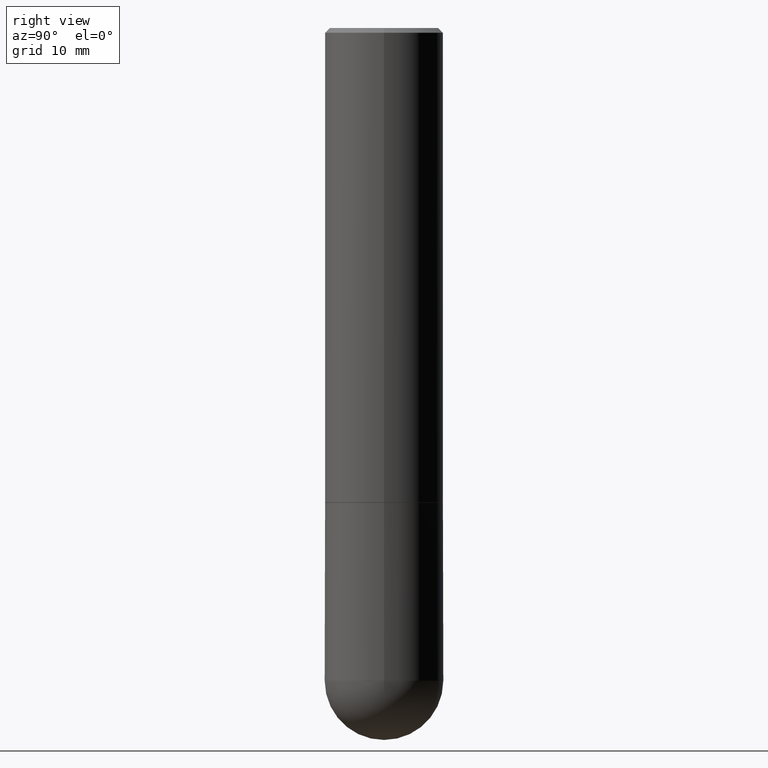
[diagram: clean part render]
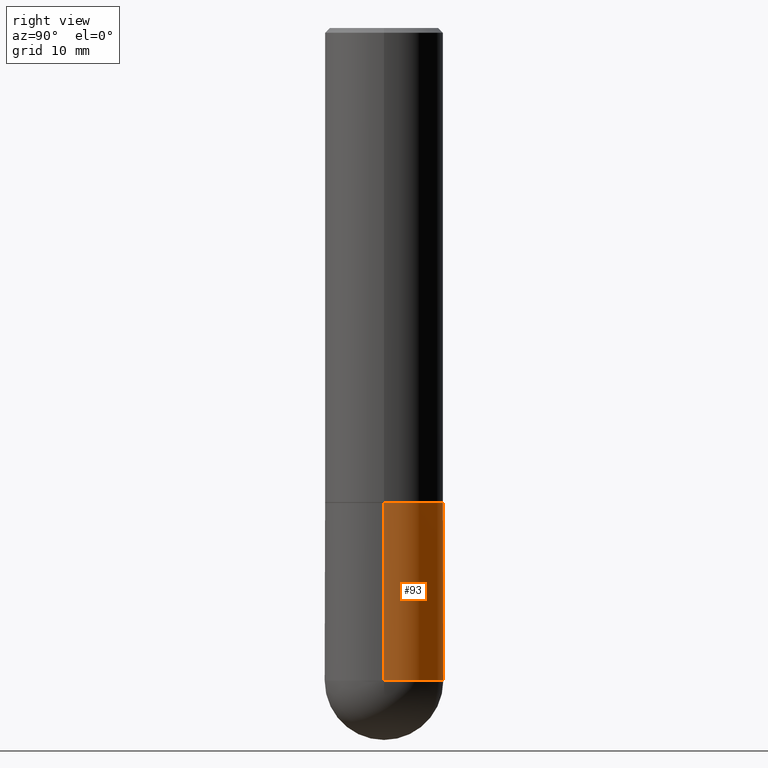
[diagram: same view with one face highlighted and labeled with its STEP entity id]
A machine part, right view. The second image highlights one B-rep face of the part: STEP entity #93.
In plain terms, the highlighted cylindrical surface (partial cylindrical patch) has radius 6.35 mm, axis along (-0, 0, 1).
Its self-contained STEP definition (entity closure, byte-faithful):
#3 = CIRCLE ( 'NONE', #155, 0.2500000000000000000 ) ;
#11 = DIRECTION ( 'NONE',  ( 1.000000000000000000, -6.982962677686262766E-15, 0.000000000000000000 ) ) ;
#13 = CARTESIAN_POINT ( 'NONE',  ( 0.000000000000000000, 0.000000000000000000, 0.000000000000000000 ) ) ;
#18 = LINE ( 'NONE', #401, #145 ) ;
#27 = ORIENTED_EDGE ( 'NONE', *, *, #221, .F. ) ;
#34 = VERTEX_POINT ( 'NONE', #387 ) ;
#39 = DIRECTION ( 'NONE',  ( -2.445468806185136597E-29, 3.491481338843145583E-15, 1.000000000000000000 ) ) ;
#58 = ORIENTED_EDGE ( 'NONE', *, *, #65, .T. ) ;
#59 = AXIS2_PLACEMENT_3D ( 'NONE', #308, #39, #11 ) ;
#65 = EDGE_CURVE ( 'NONE', #121, #130, #125, .T. ) ;
#75 = CARTESIAN_POINT ( 'NONE',  ( -0.2500000000000000000, -6.515911340352222020E-15, -2.750000000000000000 ) ) ;
#93 = ADVANCED_FACE ( 'NONE', ( #131 ), #386, .T. ) ;
#98 = DIRECTION ( 'NONE',  ( -2.445468806185136597E-29, 3.491481338843145583E-15, 1.000000000000000000 ) ) ;
#103 = DIRECTION ( 'NONE',  ( 1.000000000000000000, -6.982962677686266711E-15, 4.876176775795935793E-29 ) ) ;
#107 = CARTESIAN_POINT ( 'NONE',  ( -0.2500000000000000000, 1.776356839400250465E-15, -1.229733772563726445E-29 ) ) ;
#109 = CARTESIAN_POINT ( 'NONE',  ( 6.725039217009124520E-29, -9.601573681818649859E-15, -2.750000000000000000 ) ) ;
#111 = DIRECTION ( 'NONE',  ( -2.445468806185136877E-29, 3.491481338843145188E-15, 1.000000000000000000 ) ) ;
#115 = DIRECTION ( 'NONE',  ( 1.000000000000000000, -6.982962677686266711E-15, 0.000000000000000000 ) ) ;
#121 = VERTEX_POINT ( 'NONE', #388 ) ;
#125 = CIRCLE ( 'NONE', #59, 0.2500000000000000000 ) ;
#130 = VERTEX_POINT ( 'NONE', #276 ) ;
#131 = FACE_OUTER_BOUND ( 'NONE', #166, .T. ) ;
#145 = VECTOR ( 'NONE', #111, 39.37007874015748143 ) ;
#155 = AXIS2_PLACEMENT_3D ( 'NONE', #241, #245, #115 ) ;
#162 = AXIS2_PLACEMENT_3D ( 'NONE', #109, #249, #217 ) ;
#166 = EDGE_LOOP ( 'NONE', ( #408, #333, #27, #327, #58 ) ) ;
#170 = EDGE_CURVE ( 'NONE', #121, #349, #18, .T. ) ;
#175 = EDGE_CURVE ( 'NONE', #328, #34, #397, .T. ) ;
#217 = DIRECTION ( 'NONE',  ( 1.000000000000000000, -6.982962677686262766E-15, 0.000000000000000000 ) ) ;
#221 = EDGE_CURVE ( 'NONE', #349, #34, #3, .T. ) ;
#241 = CARTESIAN_POINT ( 'NONE',  ( 4.890937612370273754E-29, -6.982962677686291954E-15, -2.000000000000000444 ) ) ;
#245 = DIRECTION ( 'NONE',  ( -2.445468806185136597E-29, 3.491481338843145583E-15, 1.000000000000000000 ) ) ;
#249 = DIRECTION ( 'NONE',  ( -2.445468806185136597E-29, 3.491481338843145583E-15, 1.000000000000000000 ) ) ;
#276 = CARTESIAN_POINT ( 'NONE',  ( 1.745740669421632745E-15, 0.2499999999999902300, -2.750000000000000888 ) ) ;
#288 = DIRECTION ( 'NONE',  ( -2.445468806185136877E-29, 3.491481338843145188E-15, 1.000000000000000000 ) ) ;
#305 = AXIS2_PLACEMENT_3D ( 'NONE', #13, #98, #103 ) ;
#308 = CARTESIAN_POINT ( 'NONE',  ( 6.725039217009124520E-29, -9.601573681818649859E-15, -2.750000000000000000 ) ) ;
#323 = EDGE_CURVE ( 'NONE', #130, #328, #365, .T. ) ;
#327 = ORIENTED_EDGE ( 'NONE', *, *, #170, .F. ) ;
#328 = VERTEX_POINT ( 'NONE', #75 ) ;
#333 = ORIENTED_EDGE ( 'NONE', *, *, #175, .T. ) ;
#345 = CARTESIAN_POINT ( 'NONE',  ( 0.2500000000000000000, -8.728703347107858632E-15, -2.000000000000000444 ) ) ;
#349 = VERTEX_POINT ( 'NONE', #345 ) ;
#365 = CIRCLE ( 'NONE', #162, 0.2500000000000000000 ) ;
#379 = VECTOR ( 'NONE', #288, 39.37007874015748143 ) ;
#386 = CYLINDRICAL_SURFACE ( 'NONE', #305, 0.2500000000000000000 ) ;
#387 = CARTESIAN_POINT ( 'NONE',  ( -0.2500000000000000000, -6.515911340352220442E-15, -2.000000000000000444 ) ) ;
#388 = CARTESIAN_POINT ( 'NONE',  ( 0.2500000000000000000, -1.003800884917403995E-14, -2.750000000000000000 ) ) ;
#397 = LINE ( 'NONE', #107, #379 ) ;
#401 = CARTESIAN_POINT ( 'NONE',  ( 0.2500000000000000000, -1.745740669421566678E-15, 1.219044193948983948E-29 ) ) ;
#408 = ORIENTED_EDGE ( 'NONE', *, *, #323, .T. ) ;